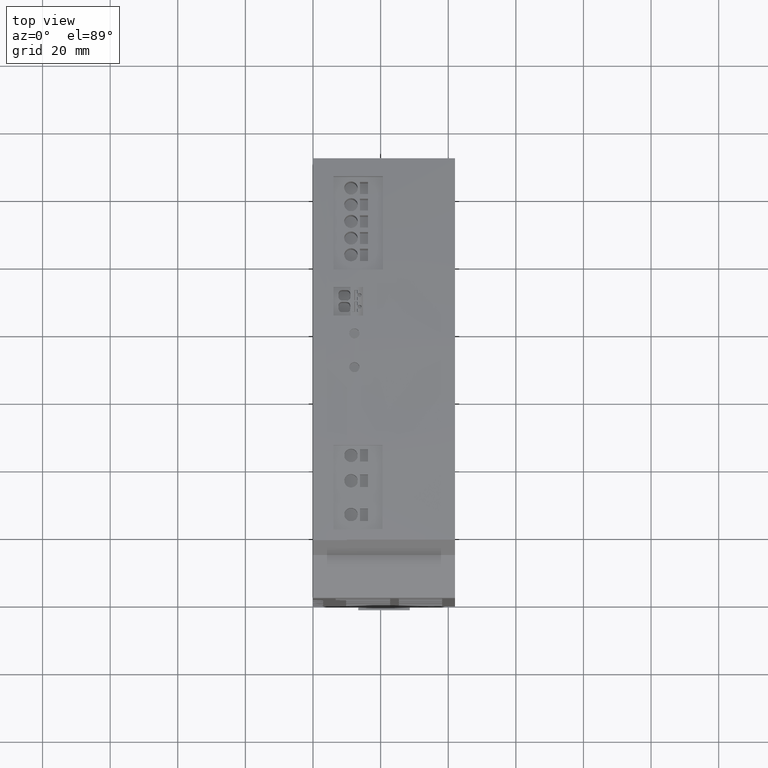
[diagram: clean part render]
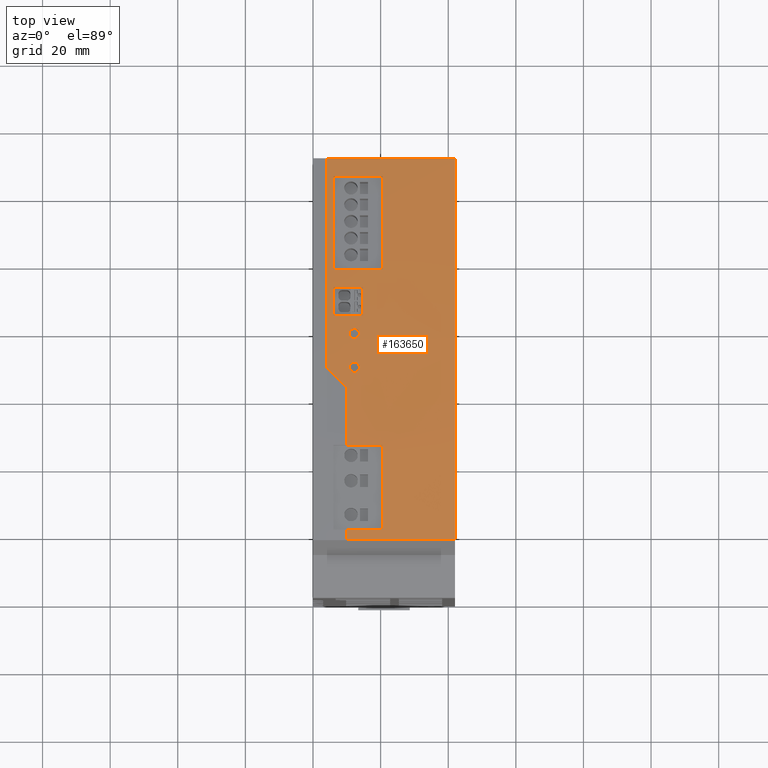
[diagram: same view with one face highlighted and labeled with its STEP entity id]
A machine part, top view. The second image highlights one B-rep face of the part: STEP entity #163650.
In plain terms, the highlighted cylindrical surface (partial cylindrical patch) has radius 660 mm, axis along (1, 0, 0).
Its self-contained STEP definition (entity closure, byte-faithful):
#156090=CARTESIAN_POINT('',(-500.,17.,-63.5));
#156100=DIRECTION('',(0.,0.,-1.));
#156110=DIRECTION('',(-1.,0.,0.));
#156120=AXIS2_PLACEMENT_3D('',#156090,#156100,#156110);
#156130=CYLINDRICAL_SURFACE('',#156120,660.);
#156140=CARTESIAN_POINT('',(155.140528377224,96.9430302003369,-63.5));
#156150=DIRECTION('',(0.,0.,-1.));
#156160=VECTOR('',#156150,1.);
#156170=LINE('',#156140,#156160);
#156180=CARTESIAN_POINT('',(155.140528377224,96.9430302003369,
-14.5646454457073));
#156190=VERTEX_POINT('',#156180);
#156200=CARTESIAN_POINT('',(155.140528377224,96.9430302003369,
-29.1646454457073));
#156210=VERTEX_POINT('',#156200);
#156220=EDGE_CURVE('',#156190,#156210,#156170,.T.);
#156230=ORIENTED_EDGE('',*,*,#156220,.F.);
#156240=CARTESIAN_POINT('',(-500.,17.,-29.1646454457073));
#156250=DIRECTION('',(0.,0.,-1.));
#156260=DIRECTION('',(-1.,0.,0.));
#156270=AXIS2_PLACEMENT_3D('',#156240,#156250,#156260);
#156280=CIRCLE('',#156270,660.);
#156290=CARTESIAN_POINT('',(151.160181954083,124.658801022145,
-29.1646454457073));
#156300=VERTEX_POINT('',#156290);
#156310=EDGE_CURVE('',#156300,#156210,#156280,.T.);
#156320=ORIENTED_EDGE('',*,*,#156310,.T.);
#156330=CARTESIAN_POINT('',(151.160181954083,124.658801022145,-63.5));
#156340=DIRECTION('',(0.,0.,-1.));
#156350=VECTOR('',#156340,1.);
#156360=LINE('',#156330,#156350);
#156370=CARTESIAN_POINT('',(151.160181954083,124.658801022145,
-14.5646454457073));
#156380=VERTEX_POINT('',#156370);
#156390=EDGE_CURVE('',#156380,#156300,#156360,.T.);
#156400=ORIENTED_EDGE('',*,*,#156390,.T.);
#156410=CARTESIAN_POINT('',(-500.,17.,-14.5646454457073));
#156420=DIRECTION('',(0.,0.,-1.));
#156430=DIRECTION('',(-1.,0.,0.));
#156440=AXIS2_PLACEMENT_3D('',#156410,#156420,#156430);
#156450=CIRCLE('',#156440,660.);
#156460=EDGE_CURVE('',#156380,#156190,#156450,.T.);
#156470=ORIENTED_EDGE('',*,*,#156460,.F.);
#156480=EDGE_LOOP('',(#156470,#156400,#156320,#156230));
#156490=FACE_BOUND('',#156480,.T.);
#156500=CARTESIAN_POINT('',(-500.,17.,-18.5));
#156510=DIRECTION('',(0.,0.,-1.));
#156520=DIRECTION('',(-1.,0.,0.));
#156530=AXIS2_PLACEMENT_3D('',#156500,#156510,#156520);
#156540=CIRCLE('',#156530,660.);
#156550=CARTESIAN_POINT('',(159.993093396575,20.0193821917187,-18.5));
#156560=VERTEX_POINT('',#156550);
#156570=CARTESIAN_POINT('',(160.,16.9999999999954,-18.5));
#156580=VERTEX_POINT('',#156570);
#156590=EDGE_CURVE('',#156560,#156580,#156540,.T.);
#156600=ORIENTED_EDGE('',*,*,#156590,.T.);
#156610=CARTESIAN_POINT('',(159.993093396575,20.0193821917187,-63.5));
#156620=DIRECTION('',(0.,0.,-1.));
#156630=VECTOR('',#156620,1.);
#156640=LINE('',#156610,#156630);
#156650=CARTESIAN_POINT('',(159.993093396575,20.0193821917187,
-29.1037309873865));
#156660=VERTEX_POINT('',#156650);
#156670=EDGE_CURVE('',#156560,#156660,#156640,.T.);
#156680=ORIENTED_EDGE('',*,*,#156670,.F.);
#156690=CARTESIAN_POINT('',(-500.,17.,-29.1037309873865));
#156700=DIRECTION('',(0.,0.,-1.));
#156710=DIRECTION('',(-1.,0.,0.));
#156720=AXIS2_PLACEMENT_3D('',#156690,#156700,#156710);
#156730=CIRCLE('',#156720,660.);
#156740=CARTESIAN_POINT('',(159.405243976737,45.0129294430252,
-29.1037309873865));
#156750=VERTEX_POINT('',#156740);
#156760=EDGE_CURVE('',#156750,#156660,#156730,.T.);
#156770=ORIENTED_EDGE('',*,*,#156760,.T.);
#156780=CARTESIAN_POINT('',(159.405243976737,45.0129294430252,-63.5));
#156790=DIRECTION('',(0.,0.,-1.));
#156800=VECTOR('',#156790,1.);
#156810=LINE('',#156780,#156800);
#156820=CARTESIAN_POINT('',(159.405243976737,45.0129294430252,-18.5));
#156830=VERTEX_POINT('',#156820);
#156840=EDGE_CURVE('',#156830,#156750,#156810,.T.);
#156850=ORIENTED_EDGE('',*,*,#156840,.T.);
#156860=CARTESIAN_POINT('',(158.464122029439,61.9999999999966,-18.5));
#156870=VERTEX_POINT('',#156860);
#156880=EDGE_CURVE('',#156870,#156830,#156540,.T.);
#156890=ORIENTED_EDGE('',*,*,#156880,.T.);
#156900=CARTESIAN_POINT('',(-500.,17.,-63.4999999999965));
#156910=DIRECTION('',(0.,-0.707106781186548,0.707106781186548));
#156920=DIRECTION('',(0.,0.707106781186548,0.707106781186548));
#156930=AXIS2_PLACEMENT_3D('',#156900,#156910,#156920);
#156940=ELLIPSE('',#156930,933.380951166243,660.);
#156950=CARTESIAN_POINT('',(158.026595207215,67.9999999999965,-12.5));
#156960=VERTEX_POINT('',#156950);
#156970=EDGE_CURVE('',#156870,#156960,#156940,.T.);
#156980=ORIENTED_EDGE('',*,*,#156970,.F.);
#156990=CARTESIAN_POINT('',(-500.,17.,-12.5));
#157000=DIRECTION('',(0.,0.,-1.));
#157010=DIRECTION('',(-1.,0.,0.));
#157020=AXIS2_PLACEMENT_3D('',#156990,#157000,#157010);
#157030=CIRCLE('',#157020,660.);
#157040=CARTESIAN_POINT('',(150.254565535683,130.,-12.5));
#157050=VERTEX_POINT('',#157040);
#157060=EDGE_CURVE('',#157050,#156960,#157030,.T.);
#157070=ORIENTED_EDGE('',*,*,#157060,.T.);
#157080=CARTESIAN_POINT('',(150.254565535683,130.,-63.5));
#157090=DIRECTION('',(0.,0.,-1.));
#157100=VECTOR('',#157090,1.);
#157110=LINE('',#157080,#157100);
#157120=CARTESIAN_POINT('',(150.254565535683,130.,-50.5));
#157130=VERTEX_POINT('',#157120);
#157140=EDGE_CURVE('',#157050,#157130,#157110,.T.);
#157150=ORIENTED_EDGE('',*,*,#157140,.F.);
#157160=CARTESIAN_POINT('',(-500.,17.,-50.5));
#157170=DIRECTION('',(0.,0.,-1.));
#157180=DIRECTION('',(-1.,0.,0.));
#157190=AXIS2_PLACEMENT_3D('',#157160,#157170,#157180);
#157200=CIRCLE('',#157190,660.);
#157210=CARTESIAN_POINT('',(160.,16.9999999999949,-50.5));
#157220=VERTEX_POINT('',#157210);
#157230=EDGE_CURVE('',#157130,#157220,#157200,.T.);
#157240=ORIENTED_EDGE('',*,*,#157230,.F.);
#157250=CARTESIAN_POINT('',(160.,16.9999999999951,-63.5));
#157260=DIRECTION('',(0.,0.,-1.));
#157270=VECTOR('',#157260,1.);
#157280=LINE('',#157250,#157270);
#157290=EDGE_CURVE('',#156580,#157220,#157280,.T.);
#157300=ORIENTED_EDGE('',*,*,#157290,.T.);
#157310=EDGE_LOOP('',(#157300,#157240,#157150,#157070,#156980,#156890,
#156850,#156770,#156680,#156600));
#157320=FACE_OUTER_BOUND('',#157310,.T.);
#157330=CARTESIAN_POINT('',(155.753335866467,91.7499999999999,-63.5));
#157340=DIRECTION('',(0.,0.,-1.));
#157350=VECTOR('',#157340,1.);
#157360=LINE('',#157330,#157350);
#157370=CARTESIAN_POINT('',(155.753335866467,91.7499999999999,-14.6));
#157380=VERTEX_POINT('',#157370);
#157390=CARTESIAN_POINT('',(155.753335866467,91.75,-23.3));
#157400=VERTEX_POINT('',#157390);
#157410=EDGE_CURVE('',#157380,#157400,#157360,.T.);
#157420=ORIENTED_EDGE('',*,*,#157410,.T.);
#157430=CARTESIAN_POINT('',(-500.,17.,-14.6));
#157440=DIRECTION('',(0.,0.,-1.));
#157450=DIRECTION('',(-1.,0.,0.));
#157460=AXIS2_PLACEMENT_3D('',#157430,#157440,#157450);
#157470=CIRCLE('',#157460,660.);
#157480=CARTESIAN_POINT('',(156.666534475452,83.25,-14.6));
#157490=VERTEX_POINT('',#157480);
#157500=EDGE_CURVE('',#157380,#157490,#157470,.T.);
#157510=ORIENTED_EDGE('',*,*,#157500,.F.);
#157520=CARTESIAN_POINT('',(156.666534475452,83.25,-63.5));
#157530=DIRECTION('',(0.,0.,-1.));
#157540=VECTOR('',#157530,1.);
#157550=LINE('',#157520,#157540);
#157560=CARTESIAN_POINT('',(156.666534475452,83.25,-23.3));
#157570=VERTEX_POINT('',#157560);
#157580=EDGE_CURVE('',#157490,#157570,#157550,.T.);
#157590=ORIENTED_EDGE('',*,*,#157580,.F.);
#157600=CARTESIAN_POINT('',(-500.,17.,-23.3));
#157610=DIRECTION('',(0.,0.,-1.));
#157620=DIRECTION('',(-1.,0.,0.));
#157630=AXIS2_PLACEMENT_3D('',#157600,#157610,#157620);
#157640=CIRCLE('',#157630,660.);
#157650=EDGE_CURVE('',#157400,#157570,#157640,.T.);
#157660=ORIENTED_EDGE('',*,*,#157650,.T.);
#157670=EDGE_LOOP('',(#157660,#157590,#157510,#157420));
#157680=FACE_BOUND('',#157670,.T.);
#157690=CARTESIAN_POINT('',(-500.,17.,-34.5));
#157700=DIRECTION('',(0.,0.,-1.));
#157710=DIRECTION('',(-1.,0.,0.));
#157720=AXIS2_PLACEMENT_3D('',#157690,#157700,#157710);
#157730=CYLINDRICAL_SURFACE('',#157720,660.);
#157740=CARTESIAN_POINT('',(156.280995800265,67.9587288529203,
-20.7299999999997));
#157750=DIRECTION('',(0.999450215941757,0.0331551783885286,
-4.49378157317781E-13));
#157760=DIRECTION('',(0.0331551783885286,-0.999450215941757,
-4.44917550544651E-28));
#157770=AXIS2_PLACEMENT_3D('',#157740,#157750,#157760);
#157780=CYLINDRICAL_SURFACE('',#157770,1.5);
#157790=CARTESIAN_POINT('',(158.139660695591,66.51956198809,
-20.7300000000005));
#157800=CARTESIAN_POINT('',(158.139660695591,66.51956198809,
-20.7576342950847));
#157810=CARTESIAN_POINT('',(158.139603305179,66.5203247528721,
-20.785266891291));
#157820=CARTESIAN_POINT('',(158.139488804966,66.5218464471745,
-20.8128339754947));
#157830=CARTESIAN_POINT('',(158.13937430453,66.5233681444461,
-20.8404011134891));
#157840=CARTESIAN_POINT('',(158.13920269826,66.5256487178511,
-20.8679021654169));
#157850=CARTESIAN_POINT('',(158.138974775363,66.5286773660838,
-20.8952752590936));
#157860=CARTESIAN_POINT('',(158.138746851583,66.5317060260706,
-20.9226484590045));
#157870=CARTESIAN_POINT('',(158.138462618893,66.5354826571132,
-20.9498931545944));
#157880=CARTESIAN_POINT('',(158.138123322704,66.539990202559,
-20.9769512674862));
#157890=CARTESIAN_POINT('',(158.137953674462,66.5422439772364,
-20.9904803356643));
#157900=CARTESIAN_POINT('',(158.137770267431,66.5446803834719,
-21.0039627897456));
#157910=CARTESIAN_POINT('',(158.137573293609,66.5472967900455,
-21.0173918418512));
#157920=CARTESIAN_POINT('',(158.137376363934,66.549912610219,
-21.0308178841814));
#157930=CARTESIAN_POINT('',(158.137165373463,66.5527149929051,
-21.0442247148284));
#157940=CARTESIAN_POINT('',(158.136940301218,66.5557041212313,
-21.0576065196102));
#157950=CARTESIAN_POINT('',(158.136490161076,66.5616823201345,
-21.0843698706402));
#157960=CARTESIAN_POINT('',(158.13598369498,66.568407498146,
-21.1110310793704));
#157970=CARTESIAN_POINT('',(158.135421276983,66.5758737751374,
-21.1375301048652));
#157980=CARTESIAN_POINT('',(158.134858861223,66.5833400224193,
-21.1640290249159));
#157990=CARTESIAN_POINT('',(158.134240501507,66.591547261556,
-21.1903652186574));
#158000=CARTESIAN_POINT('',(158.133567100676,66.6004824103536,
-21.2164774057906));
#158010=CARTESIAN_POINT('',(158.132893701223,66.609417540878,
-21.2425895395222));
#158020=CARTESIAN_POINT('',(158.132165272878,66.6190804166061,
-21.2684771159469));
#158030=CARTESIAN_POINT('',(158.131383248,66.6294507734512,
-21.2940796066597));
#158040=CARTESIAN_POINT('',(158.130601223285,66.6398211281377,
-21.3196820920434));
#158050=CARTESIAN_POINT('',(158.129765618158,66.6508987473892,
-21.3449989509735));
#158060=CARTESIAN_POINT('',(158.128878363619,66.6626566329728,
-21.3699722192907));
#158070=CARTESIAN_POINT('',(158.127991107645,66.6744145375816,
-21.394945528017));
#158080=CARTESIAN_POINT('',(158.127052221803,66.6868524464526,
-21.4195747317009));
#158090=CARTESIAN_POINT('',(158.126064073887,66.6999374910474,
-21.4438060692569));
#158100=CARTESIAN_POINT('',(158.125075922492,66.7130225817138,
-21.4680374921302));
#158110=CARTESIAN_POINT('',(158.124038531396,66.7267545087538,
-21.4918705767927));
#158120=CARTESIAN_POINT('',(158.122954611481,66.7410958208014,
-21.5152572293711));
#158130=CARTESIAN_POINT('',(158.121870101032,66.755444946201,
-21.5386566233323));
#158140=CARTESIAN_POINT('',(158.120741814439,66.7703670585854,
-21.5615553404849));
#158150=CARTESIAN_POINT('',(158.11956463635,66.7859281610879,
-21.5840666872622));
#158160=CARTESIAN_POINT('',(158.118386956469,66.8014958967725,
-21.6065876298802));
#158170=CARTESIAN_POINT('',(158.117159259131,66.8177174726273,
-21.6287354793603));
#158180=CARTESIAN_POINT('',(158.115883457528,66.834565724173,
-21.650457162363));
#158190=CARTESIAN_POINT('',(158.114607661448,66.851413902786,
-21.6721787513369));
#158200=CARTESIAN_POINT('',(158.113283783143,66.8688884620933,
-21.6934737151557));
#158210=CARTESIAN_POINT('',(158.111914279743,66.8869550388951,
-21.7142902492102));
#158220=CARTESIAN_POINT('',(158.110544779597,66.9050215727559,
-21.7351067337876));
#158230=CARTESIAN_POINT('',(158.109129680766,66.9236797715914,
-21.7554443422233));
#158240=CARTESIAN_POINT('',(158.107671934442,66.9428887933873,
-21.7752544209475));
#158250=CARTESIAN_POINT('',(158.106214188901,66.9620978048712,
-21.7950644890371));
#158260=CARTESIAN_POINT('',(158.104713825811,66.9818572407163,
-21.8143466078254));
#158270=CARTESIAN_POINT('',(158.103174215692,67.0021208273203,
-21.8330568258015));
#158280=CARTESIAN_POINT('',(158.101634603609,67.0223844397886,
-21.8517670676592));
#158290=CARTESIAN_POINT('',(158.100055777087,67.0431517704361,
-21.8699050285864));
#158300=CARTESIAN_POINT('',(158.098441426903,67.0643724766505,
-21.8874326899588));
#158310=CARTESIAN_POINT('',(158.095906845993,67.0976896573911,
-21.914951673352));
#158320=CARTESIAN_POINT('',(158.093284855503,67.1321222830074,
-21.9409623280305));
#158330=CARTESIAN_POINT('',(158.090590465906,67.167466950551,
-21.9653533859473));
#158340=CARTESIAN_POINT('',(158.087899628072,67.2027650265151,
-21.9897122914068));
#158350=CARTESIAN_POINT('',(158.085124051696,67.2391372721356,
-22.0125775435051));
#158360=CARTESIAN_POINT('',(158.082261608026,67.276604468333,
-22.0339253319306));
#158370=CARTESIAN_POINT('',(158.07940039287,67.3140555842296,
-22.0552639582386));
#158380=CARTESIAN_POINT('',(158.076457614449,67.3525320828576,
-22.0750392919364));
#158390=CARTESIAN_POINT('',(158.07344823415,67.3918319692369,
-22.0931236572466));
#158400=CARTESIAN_POINT('',(158.070438868963,67.431131658255,
-22.1112079317384));
#158410=CARTESIAN_POINT('',(158.067363267543,67.4712499276766,
-22.1275988640585));
#158420=CARTESIAN_POINT('',(158.064238348581,67.5119610261004,
-22.1422047293976));
#158430=CARTESIAN_POINT('',(158.061113413571,67.5526723335893,
-22.1568106697427));
#158440=CARTESIAN_POINT('',(158.057939550395,67.5939713794704,
-22.1696298768203));
#158450=CARTESIAN_POINT('',(158.054734446902,67.6356245346879,
-22.1806130287935));
#158460=CARTESIAN_POINT('',(158.051528371935,67.6772903150544,
-22.1915995097805));
#158470=CARTESIAN_POINT('',(158.048295545542,67.7192519664485,
-22.2007385899338));
#158480=CARTESIAN_POINT('',(158.045041163275,67.7614400940702,
-22.2080507817474));
#158490=CARTESIAN_POINT('',(158.041784130332,67.8036625836766,
-22.2153689292988));
#158500=CARTESIAN_POINT('',(158.038497127752,67.8462204051768,
-22.2208713055976));
#158510=CARTESIAN_POINT('',(158.035197237933,67.8888906936895,
-22.2245320600347));
#158520=CARTESIAN_POINT('',(158.031896423761,67.9315729348548,
-22.2281938399096));
#158530=CARTESIAN_POINT('',(158.028579860395,67.9744046789483,
-22.2300182476132));
#158540=CARTESIAN_POINT('',(158.025259192903,68.0172349712637,
-22.2299998623604));
#158550=CARTESIAN_POINT('',(158.021939205438,68.060056492523,
-22.2299814808726));
#158560=CARTESIAN_POINT('',(158.018612838474,68.1029059451743,
-22.2281215078585));
#158570=CARTESIAN_POINT('',(158.015290629731,68.1456478839651,
-22.2244154457018));
#158580=CARTESIAN_POINT('',(158.011969008664,68.1883822620121,
-22.220710039121));
#158590=CARTESIAN_POINT('',(158.008654507408,68.2309709654153,
-22.2151596801163));
#158600=CARTESIAN_POINT('',(158.005365224441,68.2731833988272,
-22.2078005635141));
#158610=CARTESIAN_POINT('',(158.002078860824,68.3153583672793,
-22.2004479783764));
#158620=CARTESIAN_POINT('',(157.998801481924,68.3573655376756,
-22.191255487349));
#158630=CARTESIAN_POINT('',(157.995546788592,68.3990311813602,
-22.1802230931695));
#158640=CARTESIAN_POINT('',(157.992292454677,68.4406922238787,
-22.1691919173051));
#158650=CARTESIAN_POINT('',(157.989062581691,68.481988980628,
-22.1563252402725));
#158660=CARTESIAN_POINT('',(157.98587573115,68.5226876076077,
-22.1416749486052));
#158670=CARTESIAN_POINT('',(157.982688893767,68.5633860665507,
-22.1270247174263));
#158680=CARTESIAN_POINT('',(157.979545478447,68.603481310915,
-22.110592573531));
#158690=CARTESIAN_POINT('',(157.976463486593,68.6427487424558,
-22.0924724686348));
#158700=CARTESIAN_POINT('',(157.973381476179,68.6820164104651,
-22.0743522546195));
#158710=CARTESIAN_POINT('',(157.97036126616,68.7204514955728,
-22.0545464749192));
#158720=CARTESIAN_POINT('',(157.967419039761,68.7578543040093,
-22.0331842158458));
#158730=CARTESIAN_POINT('',(157.96594793532,68.7765555968961,
-22.0225031498949));
#158740=CARTESIAN_POINT('',(157.964496324241,68.7949988777356,
-22.0114336793307));
#158750=CARTESIAN_POINT('',(157.96306599268,68.8131623191664,
-21.9999943856687));
#158760=CARTESIAN_POINT('',(157.961635619974,68.8313262830894,
-21.9885547629424));
#158770=CARTESIAN_POINT('',(157.960227884865,68.8491932067745,
-21.976758834764));
#158780=CARTESIAN_POINT('',(157.958834233849,68.8668724103822,
-21.9645323111748));
#158790=CARTESIAN_POINT('',(157.956048286132,68.9022136373891,
-21.9400911454266));
#158800=CARTESIAN_POINT('',(157.95333202316,68.9366344232897,
-21.9140329234106));
#158810=CARTESIAN_POINT('',(157.950701985694,68.9699312731188,
-21.8864716219498));
#158820=CARTESIAN_POINT('',(157.94902683539,68.9911390425285,
-21.8689169965419));
#158830=CARTESIAN_POINT('',(157.947386732894,69.0118900227974,
-21.8507541977938));
#158840=CARTESIAN_POINT('',(157.945785773001,69.0321341437,
-21.8320218226909));
#158850=CARTESIAN_POINT('',(157.944184814703,69.0523782444415,
-21.8132894662436));
#158860=CARTESIAN_POINT('',(157.942623033333,69.0721150553657,
-21.7939879166887));
#158870=CARTESIAN_POINT('',(157.941104198353,69.0912987575806,
-21.7741615625649));
#158880=CARTESIAN_POINT('',(157.939585362138,69.1104824754077,
-21.754335192306));
#158890=CARTESIAN_POINT('',(157.938109503889,69.1291126896053,
-21.733984438585));
#158900=CARTESIAN_POINT('',(157.936679958705,69.1471491542577,
-21.7131582135215));
#158910=CARTESIAN_POINT('',(157.935250409713,69.1651856669557,
-21.6923319329809));
#158920=CARTESIAN_POINT('',(157.933867201627,69.1826280827611,
-21.6710306272826));
#158930=CARTESIAN_POINT('',(157.932533150551,69.1994427374346,
-21.6493061407611));
#158940=CARTESIAN_POINT('',(157.931199093288,69.2162574700999,
-21.6275815534741));
#158950=CARTESIAN_POINT('',(157.929914216203,69.2324441533342,
-21.6054342419002));
#158960=CARTESIAN_POINT('',(157.928680757741,69.2479763854853,
-21.5829170554204));
#158970=CARTESIAN_POINT('',(157.927448351619,69.2634953661272,
-21.5604190797469));
#158980=CARTESIAN_POINT('',(157.926262116088,69.2784259952475,
-21.5374591595042));
#158990=CARTESIAN_POINT('',(157.9251233103,69.2927539638797,
-21.5140413451803));
#159000=CARTESIAN_POINT('',(157.923984664943,69.3070799140384,
-21.4906268298751));
#159010=CARTESIAN_POINT('',(157.922894186806,69.320793921993,
-21.4667682622592));
#159020=CARTESIAN_POINT('',(157.92185495395,69.3338587718639,
-21.4425144066146));
#159030=CARTESIAN_POINT('',(157.920815724443,69.3469235796421,
-21.418260629112));
#159040=CARTESIAN_POINT('',(157.919827764144,69.3593389315155,
-21.3936120410584));
#159050=CARTESIAN_POINT('',(157.918893768819,69.371072377926,
-21.3686228990557));
#159060=CARTESIAN_POINT('',(157.917959774741,69.3828058086631,
-21.3436337904334));
#159070=CARTESIAN_POINT('',(157.917079766524,69.3938570744564,
-21.3183046455791));
#159080=CARTESIAN_POINT('',(157.916255956057,69.4041997244845,
-21.2926937310803));
#159090=CARTESIAN_POINT('',(157.91543214519,69.4145423795502,
-21.2670828041071));
#159100=CARTESIAN_POINT('',(157.914664549251,69.4241762057914,
-21.2411906494762));
#159110=CARTESIAN_POINT('',(157.913954828248,69.4330815635944,
-21.2150778841612));
#159120=CARTESIAN_POINT('',(157.913245105588,69.4419869421858,
-21.1889650578894));
#159130=CARTESIAN_POINT('',(157.912593270795,69.4501636922004,
-21.1626321707469));
#159140=CARTESIAN_POINT('',(157.912000397488,69.4575993825057,
-21.136140352794));
#159150=CARTESIAN_POINT('',(157.911407521637,69.465035104725,
-21.109648421138));
#159160=CARTESIAN_POINT('',(157.910873615528,69.4717296652077,
-21.0829980984685));
#159170=CARTESIAN_POINT('',(157.910399166794,69.4776778086664,
-21.0562490072533));
#159180=CARTESIAN_POINT('',(157.909451527103,69.4895583268867,
-21.0028217374232));
#159190=CARTESIAN_POINT('',(157.908735496305,69.4985313489412,
-20.9486835467251));
#159200=CARTESIAN_POINT('',(157.90825726955,69.5045237722309,
-20.894134419779));
#159210=CARTESIAN_POINT('',(157.908018224126,69.5075191323865,
-20.8668676074259));
#159220=CARTESIAN_POINT('',(157.907838742574,69.5097678849715,
-20.8395151254275));
#159230=CARTESIAN_POINT('',(157.907719161252,69.5112661058491,
-20.8121387017622));
#159240=CARTESIAN_POINT('',(157.907599579743,69.5127643290668,
-20.7847622353381));
#159250=CARTESIAN_POINT('',(157.907539899505,69.5135120076799,
-20.7573623791611));
#159260=CARTESIAN_POINT('',(157.907539899505,69.5135120076799,
-20.7300000000004));
#159270=B_SPLINE_CURVE_WITH_KNOTS('',3,(#157790,#157800,#157810,#157820,
#157830,#157840,#157850,#157860,#157870,#157880,#157890,#157900,#157910,
#157920,#157930,#157940,#157950,#157960,#157970,#157980,#157990,#158000,
#158010,#158020,#158030,#158040,#158050,#158060,#158070,#158080,#158090,
#158100,#158110,#158120,#158130,#158140,#158150,#158160,#158170,#158180,
#158190,#158200,#158210,#158220,#158230,#158240,#158250,#158260,#158270,
#158280,#158290,#158300,#158310,#158320,#158330,#158340,#158350,#158360,
#158370,#158380,#158390,#158400,#158410,#158420,#158430,#158440,#158450,
#158460,#158470,#158480,#158490,#158500,#158510,#158520,#158530,#158540,
#158550,#158560,#158570,#158580,#158590,#158600,#158610,#158620,#158630,
#158640,#158650,#158660,#158670,#158680,#158690,#158700,#158710,#158720,
#158730,#158740,#158750,#158760,#158770,#158780,#158790,#158800,#158810,
#158820,#158830,#158840,#158850,#158860,#158870,#158880,#158890,#158900,
#158910,#158920,#158930,#158940,#158950,#158960,#158970,#158980,#158990,
#159000,#159010,#159020,#159030,#159040,#159050,#159060,#159070,#159080,
#159090,#159100,#159110,#159120,#159130,#159140,#159150,#159160,#159170,
#159180,#159190,#159200,#159210,#159220,#159230,#159240,#159250,#159260)
,.UNSPECIFIED.,.F.,.F.,(4,3,3,3,3,3,3,3,3,3,3,3,3,3,3,3,3,3,3,3,3,3,3,3,
3,3,3,3,3,3,3,3,3,3,3,3,3,3,3,3,3,3,3,3,3,3,3,3,3,4),(0.,
0.0828762085168866,0.165612108761249,0.248082658418469,0.289182958417056
,0.330273224269074,0.412726945055943,0.495452006927672,0.578324110639711
,0.661211636142159,0.74398215896352,0.826508904798958,0.908715132179615,
0.991107883118349,1.07379275531586,1.15664779042649,1.2395424727969,
1.32234428701187,1.45185159366318,1.58105212005748,1.7109367074549,
1.84107260994202,1.97095212066889,2.10012881739932,2.22905664060334,
2.35794066920271,2.4869004892524,2.61593575911294,2.74518310692806,
2.87510968174709,3.00524320944731,3.13507648839566,3.1997304585516,
3.26423534280723,3.3938160244897,3.47664045881313,3.55953753424669,
3.64237467324271,3.72502229307645,3.80736042790191,3.889599376524,
3.97217124059111,4.05496808692281,4.13786180281811,4.22071965321861,
4.30341071274241,4.38581243990455,4.55023124256532,4.63251579584742,
4.71469569168512),.UNSPECIFIED.);
#159280=SURFACE_CURVE('',#159270,(#157730,#157780),.CURVE_3D.);
#159290=CARTESIAN_POINT('',(158.139660695591,66.5195619880899,
-20.7300000000005));
#159300=VERTEX_POINT('',#159290);
#159310=CARTESIAN_POINT('',(157.907539899505,69.51351200768,
-20.7300000000004));
#159320=VERTEX_POINT('',#159310);
#159330=EDGE_CURVE('',#159300,#159320,#159280,.T.);
#159340=ORIENTED_EDGE('',*,*,#159330,.F.);
#159350=CARTESIAN_POINT('',(157.907539899505,69.5135120076799,
-20.7300000000004));
#159360=CARTESIAN_POINT('',(157.907539899505,69.5135120076799,
-20.7026381246687));
#159370=CARTESIAN_POINT('',(157.907599573052,69.5127644130583,
-20.6752045089575));
#159380=CARTESIAN_POINT('',(157.907719615809,69.5112604107504,
-20.6477572998888));
#159390=CARTESIAN_POINT('',(157.907839657971,69.5097564159071,
-20.6203102270445));
#159400=CARTESIAN_POINT('',(157.908020071401,69.5074959877386,
-20.5928500999783));
#159410=CARTESIAN_POINT('',(157.908261017385,69.5044768098855,
-20.5654386433586));
#159420=CARTESIAN_POINT('',(157.908501962659,69.5014576409389,
-20.5380272676004));
#159430=CARTESIAN_POINT('',(157.908803438093,69.4976797518214,
-20.5106651293785));
#159440=CARTESIAN_POINT('',(157.909165023687,69.4931479131839,
-20.4834155254201));
#159450=CARTESIAN_POINT('',(157.909526608892,69.4886160794101,
-20.4561659507064));
#159460=CARTESIAN_POINT('',(157.909948297489,69.4833303798257,
-20.4290294861806));
#159470=CARTESIAN_POINT('',(157.910429079381,69.4773027944955,
-20.4020690875327));
#159480=CARTESIAN_POINT('',(157.910909861633,69.4712752046363,
-20.3751086686278));
#159490=CARTESIAN_POINT('',(157.911449726252,69.4645058643616,
-20.3483248826426));
#159500=CARTESIAN_POINT('',(157.912047100547,69.4570136394379,
-20.321778522674));
#159510=CARTESIAN_POINT('',(157.912644476401,69.4495213949463,
-20.2952320933726));
#159520=CARTESIAN_POINT('',(157.91329934719,69.4413064485903,
-20.2689236309602));
#159530=CARTESIAN_POINT('',(157.914009641174,69.4323937835553,
-20.2429100331988));
#159540=CARTESIAN_POINT('',(157.91471993842,69.4234810775799,
-20.2168963159439));
#159550=CARTESIAN_POINT('',(157.915485640811,69.4138708770799,
-20.1911779602779));
#159560=CARTESIAN_POINT('',(157.916304278266,69.4035930526484,
-20.1658063296321));
#159570=CARTESIAN_POINT('',(157.917122204457,69.3933241580018,
-20.1404567428737));
#159580=CARTESIAN_POINT('',(157.917995806148,69.3823532485492,
-20.115362070694));
#159590=CARTESIAN_POINT('',(157.9189260404,69.3706669601112,
-20.0905143800338));
#159600=CARTESIAN_POINT('',(157.919856078724,69.3589831330642,
-20.0656719228473));
#159610=CARTESIAN_POINT('',(157.920841977586,69.346593619244,
-20.0410994522487));
#159620=CARTESIAN_POINT('',(157.921882002352,69.3335187282798,
-20.0168546902984));
#159630=CARTESIAN_POINT('',(157.922922023703,69.3204438802398,
-19.9926100079426));
#159640=CARTESIAN_POINT('',(157.924016152128,69.3066838887348,
-19.9686935442747));
#159650=CARTESIAN_POINT('',(157.925162074323,69.2922662491887,
-19.9451620847057));
#159660=CARTESIAN_POINT('',(157.926307994918,69.2778486297732,
-19.9216306579924));
#159670=CARTESIAN_POINT('',(157.927505686103,69.2627736505712,
-19.8984847354686));
#159680=CARTESIAN_POINT('',(157.928752303634,69.2470754414443,
-19.875778315289));
#159690=CARTESIAN_POINT('',(157.929998921691,69.2313772256825,
-19.8530718855124));
#159700=CARTESIAN_POINT('',(157.931294439302,69.2150561138636,
-19.8308054327258));
#159710=CARTESIAN_POINT('',(157.932635559099,69.1981519429335,
-19.8090285747028));
#159720=CARTESIAN_POINT('',(157.933976681928,69.181247733785,
-19.7872516674449));
#159730=CARTESIAN_POINT('',(157.935363377374,69.1637608348586,
-19.7659647898304));
#159740=CARTESIAN_POINT('',(157.936792002197,69.1457354906203,
-19.745211838498));
#159750=CARTESIAN_POINT('',(157.938220633026,69.1277100705963,
-19.7244587999118));
#159760=CARTESIAN_POINT('',(157.939691161862,69.1091465981373,
-19.7042400688255));
#159770=CARTESIAN_POINT('',(157.941199736784,69.0900920417774,
-19.6845927400756));
#159780=CARTESIAN_POINT('',(157.944211605956,69.0520496283687,
-19.6453668568505));
#159790=CARTESIAN_POINT('',(157.947396260555,69.0117829265655,
-19.6081369579694));
#159800=CARTESIAN_POINT('',(157.950745545817,68.9693797894878,
-19.5730721122739));
#159810=CARTESIAN_POINT('',(157.953373627838,68.9361073407426,
-19.5455577970236));
#159820=CARTESIAN_POINT('',(157.956099228705,68.9015680368971,
-19.5194232141517));
#159830=CARTESIAN_POINT('',(157.958907402723,68.865944215974,
-19.4948262883017));
#159840=CARTESIAN_POINT('',(157.961715569785,68.8303204832932,
-19.4702294233798));
#159850=CARTESIAN_POINT('',(157.964605960503,68.7936166320413,
-19.4471733404849));
#159860=CARTESIAN_POINT('',(157.967561596956,68.756042025596,
-19.4257823936305));
#159870=CARTESIAN_POINT('',(157.973478249057,68.6808244277446,
-19.3829615688669));
#159880=CARTESIAN_POINT('',(157.979631221942,68.6024363453465,
-19.3469760106482));
#159890=CARTESIAN_POINT('',(157.985944100021,68.5218144750685,
-19.3180110557808));
#159900=CARTESIAN_POINT('',(157.989106106109,68.481432443065,
-19.3035030354335));
#159910=CARTESIAN_POINT('',(157.992316886497,68.4403795781232,
-19.2907206317109));
#159920=CARTESIAN_POINT('',(157.995558671201,68.3988790634032,
-19.279736637006));
#159930=CARTESIAN_POINT('',(157.998800997274,68.3573716182091,
-19.2687508080036));
#159940=CARTESIAN_POINT('',(158.00207158367,68.3154516929059,
-19.2595705905009));
#159950=CARTESIAN_POINT('',(158.005359164616,68.2732611664699,
-19.2522129962477));
#159960=CARTESIAN_POINT('',(158.008648417495,68.2310491836028,
-19.2448516602134));
#159970=CARTESIAN_POINT('',(158.011959964442,68.188498464918,
-19.2393053946848));
#159980=CARTESIAN_POINT('',(158.015276240775,68.1458330050087,
-19.2356006173481));
#159990=CARTESIAN_POINT('',(158.018593417153,68.1031559656031,
-19.2318948345269));
#160000=CARTESIAN_POINT('',(158.021918256242,68.0603264759411,
-19.2300261486968));
#160010=CARTESIAN_POINT('',(158.025238935089,68.0174962578402,
-19.2300002726489));
#160020=CARTESIAN_POINT('',(158.028558992251,67.9746740582521,
-19.2299744014454));
#160030=CARTESIAN_POINT('',(158.031876905717,67.931825160824,
-19.2317899429969));
#160040=CARTESIAN_POINT('',(158.035182775108,67.88907770956,
-19.2354519074002));
#160050=CARTESIAN_POINT('',(158.038488022615,67.8463382997456,
-19.239113182932));
#160060=CARTESIAN_POINT('',(158.041778094559,67.8037407648152,
-19.2446197618283));
#160070=CARTESIAN_POINT('',(158.04503531453,67.7615159141174,
-19.2519360788723));
#160080=CARTESIAN_POINT('',(158.048289465123,67.7193308531796,
-19.2592455015283));
#160090=CARTESIAN_POINT('',(158.051525953521,67.6773217283943,
-19.268392806506));
#160100=CARTESIAN_POINT('',(158.05473295189,67.6356439636844,
-19.279381848287));
#160110=CARTESIAN_POINT('',(158.057939487209,67.5939722167079,
-19.2903693033916));
#160120=CARTESIAN_POINT('',(158.06111429601,67.5526608511922,
-19.3031928891288));
#160130=CARTESIAN_POINT('',(158.064239666602,67.511943855062,
-19.3178014311517));
#160140=CARTESIAN_POINT('',(158.067365023686,67.4712270349145,
-19.332409910035));
#160150=CARTESIAN_POINT('',(158.07044055306,67.4311096772918,
-19.3488016526399));
#160160=CARTESIAN_POINT('',(158.073449393487,67.391816829297,
-19.3668833097013));
#160170=CARTESIAN_POINT('',(158.07645825148,67.352523751918,
-19.3849650723199));
#160180=CARTESIAN_POINT('',(158.079400056641,67.3140599691897,
-19.4047343594931));
#160190=CARTESIAN_POINT('',(158.082259973682,67.2766258606468,
-19.4260624795454));
#160200=CARTESIAN_POINT('',(158.083689923453,67.2579089208943,
-19.4367264743242));
#160210=CARTESIAN_POINT('',(158.085099407056,67.2394493486142,
-19.4477794571798));
#160220=CARTESIAN_POINT('',(158.086486817999,67.2212690753965,
-19.459202868239));
#160230=CARTESIAN_POINT('',(158.08787442695,67.2030862075365,
-19.4706279096184));
#160240=CARTESIAN_POINT('',(158.089238069092,67.1852075062585,
-19.4824050488453));
#160250=CARTESIAN_POINT('',(158.09058671948,67.1675160956851,
-19.4946127008567));
#160260=CARTESIAN_POINT('',(158.093282793496,67.1321493669922,
-19.5190169005597));
#160270=CARTESIAN_POINT('',(158.095906043615,67.09770020481,
-19.5450396062631));
#160280=CARTESIAN_POINT('',(158.098441440279,67.0643723008191,
-19.5725674552736));
#160290=CARTESIAN_POINT('',(158.111431834411,66.8936129815973,
-19.713609530945));
#160300=CARTESIAN_POINT('',(158.121788283338,66.7566142888245,
-19.8904636982893));
#160310=CARTESIAN_POINT('',(158.128878537182,66.6626543329185,
-20.0900326659542));
#160320=CARTESIAN_POINT('',(158.129765916256,66.6508947964442,
-20.1150096737845));
#160330=CARTESIAN_POINT('',(158.130601541347,66.6398169110874,
-20.1403278620819));
#160340=CARTESIAN_POINT('',(158.13138351211,66.6294472711061,
-20.1659290400599));
#160350=CARTESIAN_POINT('',(158.132165483215,66.619077626604,
-20.1915302291992));
#160360=CARTESIAN_POINT('',(158.132893784059,66.6094164415429,
-20.2174138666719));
#160370=CARTESIAN_POINT('',(158.133567017478,66.6004835142902,
-20.2435193680644));
#160380=CARTESIAN_POINT('',(158.134240252431,66.5915505666686,
-20.2696249289827));
#160390=CARTESIAN_POINT('',(158.134858407971,66.5833460381642,
-20.2959518042664));
#160400=CARTESIAN_POINT('',(158.135420617993,66.5758825234396,
-20.3224388472723));
#160410=CARTESIAN_POINT('',(158.135982830394,66.5684189771284,
-20.348926002375));
#160420=CARTESIAN_POINT('',(158.136489089613,66.5616965479522,
-20.3755727852029));
#160430=CARTESIAN_POINT('',(158.136939056788,66.5557206481993,
-20.4023195008168));
#160440=CARTESIAN_POINT('',(158.137837410684,66.5437898382797,
-20.4557189876147));
#160450=CARTESIAN_POINT('',(158.138518228859,66.5347439732323,
-20.5099045200949));
#160460=CARTESIAN_POINT('',(158.138974524384,66.5286807011028,
-20.5646946015993));
#160470=CARTESIAN_POINT('',(158.139202574802,66.5256503585684,
-20.5920779535084));
#160480=CARTESIAN_POINT('',(158.139374244669,66.523368939975,
-20.6195868105384));
#160490=CARTESIAN_POINT('',(158.13948877591,66.521846833326,
-20.6471590292655));
#160500=CARTESIAN_POINT('',(158.139603306955,66.520324729291,
-20.6747312006392));
#160510=CARTESIAN_POINT('',(158.139660695591,66.51956198809,
-20.7023661578307));
#160520=CARTESIAN_POINT('',(158.139660695591,66.51956198809,
-20.7300000000005));
#160530=B_SPLINE_CURVE_WITH_KNOTS('',3,(#159350,#159360,#159370,#159380,
#159390,#159400,#159410,#159420,#159430,#159440,#159450,#159460,#159470,
#159480,#159490,#159500,#159510,#159520,#159530,#159540,#159550,#159560,
#159570,#159580,#159590,#159600,#159610,#159620,#159630,#159640,#159650,
#159660,#159670,#159680,#159690,#159700,#159710,#159720,#159730,#159740,
#159750,#159760,#159770,#159780,#159790,#159800,#159810,#159820,#159830,
#159840,#159850,#159860,#159870,#159880,#159890,#159900,#159910,#159920,
#159930,#159940,#159950,#159960,#159970,#159980,#159990,#160000,#160010,
#160020,#160030,#160040,#160050,#160060,#160070,#160080,#160090,#160100,
#160110,#160120,#160130,#160140,#160150,#160160,#160170,#160180,#160190,
#160200,#160210,#160220,#160230,#160240,#160250,#160260,#160270,#160280,
#160290,#160300,#160310,#160320,#160330,#160340,#160350,#160360,#160370,
#160380,#160390,#160400,#160410,#160420,#160430,#160440,#160450,#160460,
#160470,#160480,#160490,#160500,#160510,#160520),.UNSPECIFIED.,.F.,.F.,(
4,3,3,3,3,3,3,3,3,3,3,3,3,3,3,3,3,3,3,3,3,3,3,3,3,3,3,3,3,3,3,3,3,3,3,3,
3,3,3,4),(0.,0.0822840509986187,0.164893977458989,0.247711238088454,
0.330606718213347,0.413447467577456,0.496103131314489,0.578452593444741,
0.660681382951753,0.743241668112937,0.826031137396537,0.908922360952367,
0.991782856383305,1.07448151160332,1.1568951242062,1.32159675190706,
1.45159096542035,1.5817102732074,1.84051640291533,1.96967039239571,
2.09868076103249,2.22760883117056,2.35649295339819,2.4854507945306,
2.61448970385632,2.74372342409186,2.87364137367213,3.00377569217799,
3.13361889814791,3.19828087534691,3.26278427170197,3.39235163476004,
4.05348939849905,4.13638085443716,4.21924021449962,4.30193642362653,
4.38434659459976,4.54905319901903,4.63181241761343,4.71469563208136),
.UNSPECIFIED.);
#160540=SURFACE_CURVE('',#160530,(#157730,#157780),.CURVE_3D.);
#160550=EDGE_CURVE('',#159320,#159300,#160540,.T.);
#160560=ORIENTED_EDGE('',*,*,#160550,.F.);
#160570=EDGE_LOOP('',(#160560,#159340));
#160580=FACE_BOUND('',#160570,.T.);
#160590=CARTESIAN_POINT('',(155.948689465334,77.9759766660442,
-20.7299999999997));
#160600=DIRECTION('',(0.999450215941757,0.0331551783885286,
-4.49378157317781E-13));
#160610=DIRECTION('',(0.0331551783885286,-0.999450215941757,
-4.44917550544651E-28));
#160620=AXIS2_PLACEMENT_3D('',#160590,#160600,#160610);
#160630=CYLINDRICAL_SURFACE('',#160620,1.5);
#160640=CARTESIAN_POINT('',(157.310679899905,76.5203334124106,
-20.7300000000003));
#160650=CARTESIAN_POINT('',(157.310679899905,76.5203334124106,
-20.7576195645895));
#160660=CARTESIAN_POINT('',(157.310610940345,76.5210949794962,
-20.7852373900685));
#160670=CARTESIAN_POINT('',(157.310473361205,76.5226142711219,
-20.8127896721315));
#160680=CARTESIAN_POINT('',(157.310335781796,76.5241335657235,
-20.840342008163));
#160690=CARTESIAN_POINT('',(157.3101295876,76.5264105313902,
-20.8678282257601));
#160700=CARTESIAN_POINT('',(157.309855733948,76.5294343582779,
-20.8951864674603));
#160710=CARTESIAN_POINT('',(157.30958187923,76.5324581969368,
-20.9225448156624));
#160720=CARTESIAN_POINT('',(157.309240374374,76.536228792918,
-20.9497746410693));
#160730=CARTESIAN_POINT('',(157.308832726651,76.5407290812578,
-20.976817889081));
#160740=CARTESIAN_POINT('',(157.308628902612,76.5429792273903,
-20.9903395248806));
#160750=CARTESIAN_POINT('',(157.308408551425,76.5454116995922,
-21.0038145480311));
#160760=CARTESIAN_POINT('',(157.308171905449,76.5480238657716,
-21.0172361746927));
#160770=CARTESIAN_POINT('',(157.307935308173,76.5506354943892,
-21.0306550392969));
#160780=CARTESIAN_POINT('',(157.307681818905,76.5534334093023,
-21.0440548397164));
#160790=CARTESIAN_POINT('',(157.30741141913,76.5564177354744,
-21.0574295030013));
#160800=CARTESIAN_POINT('',(157.306870623929,76.5623863398171,
-21.0841786144462));
#160810=CARTESIAN_POINT('',(157.306262181009,76.5691006617624,
-21.1108255131951));
#160820=CARTESIAN_POINT('',(157.305586558018,76.5765547813922,
-21.1373102208435));
#160830=CARTESIAN_POINT('',(157.304910937714,76.5840088713672,
-21.1637948231271));
#160840=CARTESIAN_POINT('',(157.304168146921,76.5922026519501,
-21.1901166910349));
#160850=CARTESIAN_POINT('',(157.303359291674,76.601123008555,
-21.2162146099765));
#160860=CARTESIAN_POINT('',(157.302550438079,76.6100433469389,
-21.2423124756092));
#160870=CARTESIAN_POINT('',(157.30167553476,76.6196900969888,
-21.268185841447));
#160880=CARTESIAN_POINT('',(157.300736326508,76.6300429702252,
-21.2937742484964));
#160890=CARTESIAN_POINT('',(157.299797118447,76.6403958413443,
-21.3193626503128));
#160900=CARTESIAN_POINT('',(157.298793624872,76.651454619278,
-21.3446655525706));
#160910=CARTESIAN_POINT('',(157.297728191571,76.6631922897164,
-21.3696250642827));
#160920=CARTESIAN_POINT('',(157.296662756541,76.6749299792006,
-21.3945846164945));
#160930=CARTESIAN_POINT('',(157.295535405316,76.6873462994036,
-21.4192002638114));
#160940=CARTESIAN_POINT('',(157.294349009635,76.7004083738142,
-21.4434183216432));
#160950=CARTESIAN_POINT('',(157.293162609771,76.7134704942825,
-21.4676364648693));
#160960=CARTESIAN_POINT('',(157.29191719237,76.7271780700122,
-21.4914565466989));
#160970=CARTESIAN_POINT('',(157.290616041807,76.7414936487397,
-21.5148305522352));
#160980=CARTESIAN_POINT('',(157.289314178877,76.7558170650904,
-21.5382173547844));
#160990=CARTESIAN_POINT('',(157.287959905156,76.7707119497836,
-21.5611035678211));
#161000=CARTESIAN_POINT('',(157.286547049629,76.7862448024337,
-21.5836034810399));
#161010=CARTESIAN_POINT('',(157.285133601773,76.80178416711,
-21.6061128271703));
#161020=CARTESIAN_POINT('',(157.283660267099,76.8179758185865,
-21.6282493994087));
#161030=CARTESIAN_POINT('',(157.282129371961,76.8347926231975,
-21.6499603119499));
#161040=CARTESIAN_POINT('',(157.280598483434,76.8516093551769,
-21.6716711307219));
#161050=CARTESIAN_POINT('',(157.279010060864,76.8690509467841,
-21.6929558327753));
#161060=CARTESIAN_POINT('',(157.27736708192,76.8870830969386,
-21.7137627958434));
#161070=CARTESIAN_POINT('',(157.275724106873,76.9051152043122,
-21.7345697095473));
#161080=CARTESIAN_POINT('',(157.274026607093,76.9237375195552,
-21.7548984395599));
#161090=CARTESIAN_POINT('',(157.272278150981,76.9429092905833,
-21.7747005030908));
#161100=CARTESIAN_POINT('',(157.270529695811,76.9620810512931,
-21.7945025559642));
#161110=CARTESIAN_POINT('',(157.268730320158,76.9818018713584,
-21.8137775243854));
#161120=CARTESIAN_POINT('',(157.266884092884,77.0020255894055,
-21.8324816105283));
#161130=CARTESIAN_POINT('',(157.265037863268,77.0222493331067,
-21.8511857203977));
#161140=CARTESIAN_POINT('',(157.26314482102,77.0429755446555,
-21.8693185693482));
#161150=CARTESIAN_POINT('',(157.261209416236,77.0641540080834,
-21.8868422707925));
#161160=CARTESIAN_POINT('',(157.258164348888,77.0974751241609,
-21.9144131704433));
#161170=CARTESIAN_POINT('',(157.255014605131,77.1319136284984,
-21.9404722032586));
#161180=CARTESIAN_POINT('',(157.251778379588,77.1672653264959,
-21.9649078347572));
#161190=CARTESIAN_POINT('',(157.248546413724,77.2025704928543,
-21.9893113028789));
#161200=CARTESIAN_POINT('',(157.245213231725,77.2389500262022,
-22.0122169495854));
#161210=CARTESIAN_POINT('',(157.241776249675,77.2764261728561,
-22.0336023133717));
#161220=CARTESIAN_POINT('',(157.238340755903,77.3138860916394,
-22.0549784168966));
#161230=CARTESIAN_POINT('',(157.234807888483,77.3523724318089,
-22.0747879245646));
#161240=CARTESIAN_POINT('',(157.231195729227,77.3916828738124,
-22.092903120602));
#161250=CARTESIAN_POINT('',(157.227583588126,77.4309931182263,
-22.1110182255853));
#161260=CARTESIAN_POINT('',(157.223892594831,77.4711226528662,
-22.1274366397846));
#161270=CARTESIAN_POINT('',(157.220143154122,77.5118453897661,
-22.1420666571774));
#161280=CARTESIAN_POINT('',(157.216393694155,77.5525683358419,
-22.1566967497186));
#161290=CARTESIAN_POINT('',(157.212586254409,77.5938793902231,
-22.169536775856));
#161300=CARTESIAN_POINT('',(157.208742130246,77.6355445887947,
-22.1805375041443));
#161310=CARTESIAN_POINT('',(157.204896831615,77.6772225170406,
-22.1915415934074));
#161320=CARTESIAN_POINT('',(157.201020272499,77.7191958847058,
-22.2006949322454));
#161330=CARTESIAN_POINT('',(157.197118616836,77.7613963115456,
-22.2080184677662));
#161340=CARTESIAN_POINT('',(157.193213788201,77.8036310573404,
-22.2153479590582));
#161350=CARTESIAN_POINT('',(157.189273841554,77.8462010732168,
-22.220858638844));
#161360=CARTESIAN_POINT('',(157.185319268533,77.8888835331748,
-22.2245247536435));
#161370=CARTESIAN_POINT('',(157.181363583595,77.931577994263,
-22.2281918992533));
#161380=CARTESIAN_POINT('',(157.177389849904,77.9744218616383,
-22.2300187247482));
#161390=CARTESIAN_POINT('',(157.173412017708,78.017264253684,
-22.2299998552427));
#161400=CARTESIAN_POINT('',(157.169435002687,78.060097844515,
-22.2299809896135));
#161410=CARTESIAN_POINT('',(157.165451165703,78.10295932193,
-22.2281176309987));
#161420=CARTESIAN_POINT('',(157.161473123019,78.1457132003823,
-22.2244052521895));
#161430=CARTESIAN_POINT('',(157.157495784185,78.1884595142351,
-22.220693530225));
#161440=CARTESIAN_POINT('',(157.15352778671,78.2310600582362,
-22.2151339266461));
#161450=CARTESIAN_POINT('',(157.149590770281,78.27328414939,
-22.2077626114171));
#161460=CARTESIAN_POINT('',(157.145657261492,78.3154706214673,
-22.200397863578));
#161470=CARTESIAN_POINT('',(157.141735326286,78.3574889029731,
-22.1911902805645));
#161480=CARTESIAN_POINT('',(157.137841284597,78.3991657257653,
-22.1801395964638));
#161490=CARTESIAN_POINT('',(157.133947678191,78.4408378898404,
-22.1690901476303));
#161500=CARTESIAN_POINT('',(157.130084113225,78.4821455798589,
-22.1562020570117));
#161510=CARTESIAN_POINT('',(157.126272760974,78.5228546742546,
-22.1415271425896));
#161520=CARTESIAN_POINT('',(157.122461424458,78.5635636006017,
-22.1268522887462));
#161530=CARTESIAN_POINT('',(157.118702778253,78.6036688457693,
-22.1103923156953));
#161540=CARTESIAN_POINT('',(157.115018292692,78.6429455347112,
-22.0922411596445));
#161550=CARTESIAN_POINT('',(157.111333784934,78.6822224602587,
-22.0740898942498));
#161560=CARTESIAN_POINT('',(157.107723888001,78.720666057844,
-22.0542498454333));
#161570=CARTESIAN_POINT('',(157.104207872707,78.7580763623852,
-22.0328501258801));
#161580=CARTESIAN_POINT('',(157.102449875526,78.7767814032987,
-22.0221503298029));
#161590=CARTESIAN_POINT('',(157.10071534535,78.795228178046,
-22.0110613322586));
#161600=CARTESIAN_POINT('',(157.099006406211,78.8133948264427,
-21.9996017202953));
#161610=CARTESIAN_POINT('',(157.097297426811,78.831561902841,
-21.9881418383465));
#161620=CARTESIAN_POINT('',(157.095615626681,78.8494320072682,
-21.97632465884));
#161630=CARTESIAN_POINT('',(157.093950808942,78.8671141261284,
-21.9640759001552));
#161640=CARTESIAN_POINT('',(157.090622795144,78.9024611398984,
-21.9395903141618));
#161650=CARTESIAN_POINT('',(157.08737866724,78.9368865454099,
-21.9134839928124));
#161660=CARTESIAN_POINT('',(157.084238157155,78.9701861013142,
-21.8858711686493));
#161670=CARTESIAN_POINT('',(157.082242089019,78.9913508741328,
-21.8683208099607));
#161680=CARTESIAN_POINT('',(157.080287959782,79.0120600086123,
-21.8501634665944));
#161690=CARTESIAN_POINT('',(157.078380618488,79.0322635713508,
-21.8314375928169));
#161700=CARTESIAN_POINT('',(157.076473279079,79.0524671141225,
-21.8127117375459));
#161710=CARTESIAN_POINT('',(157.074612768283,79.0721646573417,
-21.7934177334444));
#161720=CARTESIAN_POINT('',(157.072803546255,79.0913105020746,
-21.7735998028521));
#161730=CARTESIAN_POINT('',(157.070994322753,79.1104563623993,
-21.7537818561206));
#161740=CARTESIAN_POINT('',(157.069236425427,79.1290501316445,
-21.7334404021972));
#161750=CARTESIAN_POINT('',(157.067533797043,79.1470516587181,
-21.7126241687719));
#161760=CARTESIAN_POINT('',(157.065831164134,79.16505323364,
-21.6918078800165));
#161770=CARTESIAN_POINT('',(157.064183833147,79.1824622210025,
-21.6705172560932));
#161780=CARTESIAN_POINT('',(157.062595129929,79.1992450205231,
-21.6488039450004));
#161790=CARTESIAN_POINT('',(157.061006419361,79.2160278976879,
-21.6270905334527));
#161800=CARTESIAN_POINT('',(157.059476364,79.2321843002786,
-21.6049548894527));
#161810=CARTESIAN_POINT('',(157.058007604016,79.247687856181,
-21.5824496613868));
#161820=CARTESIAN_POINT('',(157.056540098845,79.2631781668608,
-21.5599636603136));
#161830=CARTESIAN_POINT('',(157.055127668414,79.2780813049868,
-21.5370165160873));
#161840=CARTESIAN_POINT('',(157.053771757027,79.2923833214362,
-21.5136116218398));
#161850=CARTESIAN_POINT('',(157.052416039553,79.3066832925062,
-21.4902100748046));
#161860=CARTESIAN_POINT('',(157.051117732534,79.3203727367221,
-21.4663648228607));
#161870=CARTESIAN_POINT('',(157.049880484766,79.3334144336293,
-21.4421245495505));
#161880=CARTESIAN_POINT('',(157.048643240989,79.346456088464,
-21.4178843544394));
#161890=CARTESIAN_POINT('',(157.047467084917,79.3588496985593,
-21.393249615298));
#161900=CARTESIAN_POINT('',(157.046355210702,79.3705628027553,
-21.3682745105112));
#161910=CARTESIAN_POINT('',(157.045243337975,79.3822758912627,
-21.3432994391763));
#161920=CARTESIAN_POINT('',(157.044195771944,79.3933082146524,
-21.3179845198829));
#161930=CARTESIAN_POINT('',(157.043215131739,79.403633302457,
-21.292387944316));
#161940=CARTESIAN_POINT('',(157.042234491059,79.4139583952641,
-21.2667913563473));
#161950=CARTESIAN_POINT('',(157.041320796634,79.4235760395832,
-21.2409136541912));
#161960=CARTESIAN_POINT('',(157.040476012128,79.432466567933,
-21.2148153834674));
#161970=CARTESIAN_POINT('',(157.039631225651,79.4413571170277,
-21.1887170518465));
#161980=CARTESIAN_POINT('',(157.038855364471,79.449520390097,
-21.1623987016847));
#161990=CARTESIAN_POINT('',(157.038149696153,79.4569439202367,
-21.1359213948147));
#162000=CARTESIAN_POINT('',(157.037444024806,79.4643674822456,
-21.1094439742775));
#162010=CARTESIAN_POINT('',(157.036808556138,79.4710511993396,
-21.0828081371126));
#162020=CARTESIAN_POINT('',(157.036243862465,79.4769897730672,
-21.0560734396497));
#162030=CARTESIAN_POINT('',(157.035115972374,79.4888511747009,
-21.0026749303944));
#162040=CARTESIAN_POINT('',(157.03426379803,79.4978098136644,
-20.9485665921629));
#162050=CARTESIAN_POINT('',(157.033694639178,79.503792755286,
-20.8940466573939));
#162060=CARTESIAN_POINT('',(157.033410141376,79.5067833680808,
-20.8667945087347));
#162070=CARTESIAN_POINT('',(157.03319653496,79.5090285743669,
-20.8394566741345));
#162080=CARTESIAN_POINT('',(157.033054217875,79.5105244349327,
-20.8120948781736));
#162090=CARTESIAN_POINT('',(157.032911900569,79.5120202978384,
-20.7847330394127));
#162100=CARTESIAN_POINT('',(157.032840873837,79.5127668021109,
-20.7573477924036));
#162110=CARTESIAN_POINT('',(157.032840873837,79.5127668021109,
-20.7300000000002));
#162120=B_SPLINE_CURVE_WITH_KNOTS('',3,(#160640,#160650,#160660,#160670,
#160680,#160690,#160700,#160710,#160720,#160730,#160740,#160750,#160760,
#160770,#160780,#160790,#160800,#160810,#160820,#160830,#160840,#160850,
#160860,#160870,#160880,#160890,#160900,#160910,#160920,#160930,#160940,
#160950,#160960,#160970,#160980,#160990,#161000,#161010,#161020,#161030,
#161040,#161050,#161060,#161070,#161080,#161090,#161100,#161110,#161120,
#161130,#161140,#161150,#161160,#161170,#161180,#161190,#161200,#161210,
#161220,#161230,#161240,#161250,#161260,#161270,#161280,#161290,#161300,
#161310,#161320,#161330,#161340,#161350,#161360,#161370,#161380,#161390,
#161400,#161410,#161420,#161430,#161440,#161450,#161460,#161470,#161480,
#161490,#161500,#161510,#161520,#161530,#161540,#161550,#161560,#161570,
#161580,#161590,#161600,#161610,#161620,#161630,#161640,#161650,#161660,
#161670,#161680,#161690,#161700,#161710,#161720,#161730,#161740,#161750,
#161760,#161770,#161780,#161790,#161800,#161810,#161820,#161830,#161840,
#161850,#161860,#161870,#161880,#161890,#161900,#161910,#161920,#161930,
#161940,#161950,#161960,#161970,#161980,#161990,#162000,#162010,#162020,
#162030,#162040,#162050,#162060,#162070,#162080,#162090,#162100,#162110)
,.UNSPECIFIED.,.F.,.F.,(4,3,3,3,3,3,3,3,3,3,3,3,3,3,3,3,3,3,3,3,3,3,3,3,
3,3,3,3,3,3,3,3,3,3,3,3,3,3,3,3,3,3,3,3,3,3,3,3,3,4),(0.,
0.0828319009570406,0.165523279135612,0.247949130671172,0.289027034023395
,0.330095814022111,0.412506205119988,0.495187496984973,0.578015561938186
,0.660858907163935,0.74358518707204,0.826067652882869,0.908229849315607,
0.990578733100509,1.07321925719797,1.15602991363049,1.23888056823428,
1.32163899369747,1.45135241712641,1.5807564661378,1.71084565202729,
1.8411870250033,1.97127169664077,2.10065204502402,2.22978337319015,
2.35887085811427,2.48803432841255,2.61727353731828,2.74672461260119,
2.87685631392425,3.00719514328609,3.13723283524087,3.20198847169604,
3.26659534987874,3.39638216625344,3.47916303104532,3.562015883529,
3.64480846904621,3.72741162328043,3.80970586825052,3.8919007195899,
3.9744283820748,4.05718100321189,4.14003048812015,4.22284418330169,
4.30549130416808,4.38784950630212,4.5521804808388,4.63442110454929,
4.71655717859393),.UNSPECIFIED.);
#162130=SURFACE_CURVE('',#162120,(#157730,#160630),.CURVE_3D.);
#162140=CARTESIAN_POINT('',(157.310679899905,76.5203334124105,
-20.7300000000003));
#162150=VERTEX_POINT('',#162140);
#162160=CARTESIAN_POINT('',(157.032840873837,79.512766802111,
-20.7300000000002));
#162170=VERTEX_POINT('',#162160);
#162180=EDGE_CURVE('',#162150,#162170,#162130,.T.);
#162190=ORIENTED_EDGE('',*,*,#162180,.F.);
#162200=CARTESIAN_POINT('',(157.032840873837,79.5127668021109,
-20.7300000000002));
#162210=CARTESIAN_POINT('',(157.032840873837,79.5127668021109,
-20.7026527078533));
#162220=CARTESIAN_POINT('',(157.032911892584,79.5120203819054,
-20.6752337283176));
#162230=CARTESIAN_POINT('',(157.03305475883,79.510518749089,
-20.647801184214));
#162240=CARTESIAN_POINT('',(157.033197624366,79.5090171237408,
-20.6203687765423));
#162250=CARTESIAN_POINT('',(157.033412339857,79.5067602600917,
-20.5929233443849));
#162260=CARTESIAN_POINT('',(157.033699100067,79.5037458628117,
-20.5655265938528));
#162270=CARTESIAN_POINT('',(157.033985859429,79.5007314744405,
-20.5381299242887));
#162280=CARTESIAN_POINT('',(157.034344660663,79.4969595819656,
-20.5107825044594));
#162290=CARTESIAN_POINT('',(157.034775008526,79.4924349781276,
-20.4835476143228));
#162300=CARTESIAN_POINT('',(157.035205355926,79.487910379151,
-20.4563127534474));
#162310=CARTESIAN_POINT('',(157.035707241898,79.4826331525893,
-20.4291909991952));
#162320=CARTESIAN_POINT('',(157.036279470506,79.4766153016855,
-20.4022452887827));
#162330=CARTESIAN_POINT('',(157.036851699546,79.4705974462439,
-20.3752995580519));
#162340=CARTESIAN_POINT('',(157.037494258211,79.4638391018924,
-20.3485304391234));
#162350=CARTESIAN_POINT('',(157.038205282392,79.4563591581626,
-20.3219987019379));
#162360=CARTESIAN_POINT('',(157.038916308435,79.4488791948498,
-20.2954668952903));
#162370=CARTESIAN_POINT('',(157.039695782441,79.4406778150496,
-20.2691730120395));
#162380=CARTESIAN_POINT('',(157.040541247533,79.4317800254717,
-20.2431739197009));
#162390=CARTESIAN_POINT('',(157.041386716517,79.4228821949324,
-20.2171747076746));
#162400=CARTESIAN_POINT('',(157.042298155094,79.4132881788506,
-20.1914707841155));
#162410=CARTESIAN_POINT('',(157.043272633267,79.4030278701846,
-20.1661134732623));
#162420=CARTESIAN_POINT('',(157.044246264644,79.3927764774453,
-20.1407781972163));
#162430=CARTESIAN_POINT('',(157.045286216786,79.3818242569336,
-20.1156973140977));
#162440=CARTESIAN_POINT('',(157.046393612281,79.3701582577363,
-20.0908636147361));
#162450=CARTESIAN_POINT('',(157.047500777441,79.3584946850384,
-20.0660350807237));
#162460=CARTESIAN_POINT('',(157.048674478521,79.3461268877151,
-20.041476434997));
#162470=CARTESIAN_POINT('',(157.049912668444,79.333075187973,
-20.0172452631697));
#162480=CARTESIAN_POINT('',(157.051150854306,79.3200235310501,
-19.9930141708387));
#162490=CARTESIAN_POINT('',(157.052453506664,79.306288204719,
-19.9691110616241));
#162500=CARTESIAN_POINT('',(157.053817891547,79.2918966972602,
-19.9455925857714));
#162510=CARTESIAN_POINT('',(157.055182274525,79.2775052098875,
-19.9220741427434));
#162520=CARTESIAN_POINT('',(157.056608362512,79.2624578287625,
-19.898940832266));
#162530=CARTESIAN_POINT('',(157.05809279068,79.2467886583221,
-19.8762465213916));
#162540=CARTESIAN_POINT('',(157.059577219473,79.2311194812872,
-19.8535522009662));
#162550=CARTESIAN_POINT('',(157.061119956642,79.2148288477015,
-19.8312973538402));
#162560=CARTESIAN_POINT('',(157.062717098256,79.1979565537045,
-19.8095314737499));
#162570=CARTESIAN_POINT('',(157.064314243474,79.1810842216459,
-19.7877655445588));
#162580=CARTESIAN_POINT('',(157.065965758034,79.1636305971919,
-19.7664890163518));
#162590=CARTESIAN_POINT('',(157.067667325616,79.1456398733953,
-19.7457456718346));
#162600=CARTESIAN_POINT('',(157.069368900336,79.1276490741306,
-19.7250022403025));
#162610=CARTESIAN_POINT('',(157.071120490831,79.1091215668974,
-19.7047923728417));
#162620=CARTESIAN_POINT('',(157.072917530716,79.0901042652781,
-19.6851530631734));
#162630=CARTESIAN_POINT('',(157.076505333418,79.0521360895604,
-19.6459430440344));
#162640=CARTESIAN_POINT('',(157.08029923952,79.0119517341983,
-19.6087280635459));
#162650=CARTESIAN_POINT('',(157.084290075157,78.9696356002483,
-19.5736725639344));
#162660=CARTESIAN_POINT('',(157.087428161326,78.9363614474691,
-19.5461076155107));
#162670=CARTESIAN_POINT('',(157.090683357762,78.9018184314326,
-19.5199253614388));
#162680=CARTESIAN_POINT('',(157.094037884107,78.8661892891376,
-19.4952839610666));
#162690=CARTESIAN_POINT('',(157.097392402039,78.830560236202,
-19.470642622496));
#162700=CARTESIAN_POINT('',(157.1008458321,78.7938494647394,
-19.4475452751552));
#162710=CARTESIAN_POINT('',(157.104377941058,78.7562668131311,
-19.4261164353806));
#162720=CARTESIAN_POINT('',(157.111448576891,78.6810332214583,
-19.3832198191859));
#162730=CARTESIAN_POINT('',(157.118804525334,78.6026241268074,
-19.3471720951402));
#162740=CARTESIAN_POINT('',(157.1263544402,78.5219822513296,
-19.3181586702125));
#162750=CARTESIAN_POINT('',(157.130136080758,78.4815899300393,
-19.303626275294));
#162760=CARTESIAN_POINT('',(157.133976805825,78.44052624794,
-19.2908225752668));
#162770=CARTESIAN_POINT('',(157.137855407713,78.3990145698715,
-19.2798203327529));
#162780=CARTESIAN_POINT('',(157.141734652976,78.3574960059289,
-19.268816265209));
#162790=CARTESIAN_POINT('',(157.145648510836,78.3155644168993,
-19.2596208284143));
#162800=CARTESIAN_POINT('',(157.149583470379,78.2733624400266,
-19.2522510584015));
#162810=CARTESIAN_POINT('',(157.153520435264,78.2311389561034,
-19.2448775325927));
#162820=CARTESIAN_POINT('',(157.157484892906,78.1885764367392,
-19.2393220097334));
#162830=CARTESIAN_POINT('',(157.161455826995,78.1458990885274,
-19.2356109004449));
#162840=CARTESIAN_POINT('',(157.165427834961,78.1032101989024,
-19.2318987875456));
#162850=CARTESIAN_POINT('',(157.169409839136,78.0603686769632,
-19.2300266777716));
#162860=CARTESIAN_POINT('',(157.173387678325,78.0175263952389,
-19.2300002832375));
#162870=CARTESIAN_POINT('',(157.177364774672,77.9746921141132,
-19.2299738936324));
#162880=CARTESIAN_POINT('',(157.181340124681,77.9318310574213,
-19.2317918187058));
#162890=CARTESIAN_POINT('',(157.185301860572,77.8890714203161,
-19.2354591201664));
#162900=CARTESIAN_POINT('',(157.189262851132,77.8463198276909,
-19.2391257316882));
#162910=CARTESIAN_POINT('',(157.193206475902,77.803710093493,
-19.2446405992005));
#162920=CARTESIAN_POINT('',(157.197111514774,77.7614731276179,
-19.2519682035056));
#162930=CARTESIAN_POINT('',(157.201012877222,77.7192759260041,
-19.2592889091909));
#162940=CARTESIAN_POINT('',(157.204893918594,77.6772540768735,
-19.26845067303));
#162950=CARTESIAN_POINT('',(157.208740341242,77.6355639792193,
-19.2794573764041));
#162960=CARTESIAN_POINT('',(157.212586213224,77.5938798500552,
-19.2904625040228));
#162970=CARTESIAN_POINT('',(157.216394805332,77.5525562794076,
-19.3033069994987));
#162980=CARTESIAN_POINT('',(157.220144793168,77.5118275880657,
-19.3179397383748));
#162990=CARTESIAN_POINT('',(157.223894764854,77.4710990721183,
-19.3325724142362));
#163000=CARTESIAN_POINT('',(157.227585664492,77.4309705317326,
-19.3489916371549));
#163010=CARTESIAN_POINT('',(157.231197157768,77.3916673272674,
-19.3671040437279));
#163020=CARTESIAN_POINT('',(157.234808672202,77.3523638925333,
-19.3852165564175));
#163030=CARTESIAN_POINT('',(157.238340342804,77.313890582278,
-19.4050198572578));
#163040=CARTESIAN_POINT('',(157.241774242409,77.2764480596704,
-19.4263851973958));
#163050=CARTESIAN_POINT('',(157.243491181725,77.2577269127115,
-19.4370678022177));
#163060=CARTESIAN_POINT('',(157.245183684979,77.2392634112377,
-19.4481401957921));
#163070=CARTESIAN_POINT('',(157.246849807301,77.2210795185467,
-19.4595838098957));
#163080=CARTESIAN_POINT('',(157.248516141762,77.2028933105918,
-19.4710288810574));
#163090=CARTESIAN_POINT('',(157.250153909052,77.1850106112354,
-19.4828274182723));
#163100=CARTESIAN_POINT('',(157.251773802159,77.1673153291328,
-19.4950576041609));
#163110=CARTESIAN_POINT('',(157.255012094093,77.1319410880515,
-19.5195066941264));
#163120=CARTESIAN_POINT('',(157.258163380328,77.0974857229503,
-19.545578045309));
#163130=CARTESIAN_POINT('',(157.261209443436,77.0641537104487,
-19.5731579754801));
#163140=CARTESIAN_POINT('',(157.263145450668,77.0429686545344,
-19.590687140956));
#163150=CARTESIAN_POINT('',(157.265038878054,77.0222382215232,
-19.6088241082479));
#163160=CARTESIAN_POINT('',(157.266885291632,77.0020124582225,
-19.6275305341095));
#163170=CARTESIAN_POINT('',(157.268731703299,76.9817867158603,
-19.6462369406056));
#163180=CARTESIAN_POINT('',(157.270531062267,76.9620660723003,
-19.6655124244695));
#163190=CARTESIAN_POINT('',(157.272279329302,76.942896370327,
-19.6853128420987));
#163200=CARTESIAN_POINT('',(157.274027597683,76.9237266535984,
-19.7051132749686));
#163210=CARTESIAN_POINT('',(157.275724738498,76.9051082725251,
-19.7254382223765));
#163220=CARTESIAN_POINT('',(157.277367223533,76.8870815426956,
-19.7462389975722));
#163230=CARTESIAN_POINT('',(157.27900971286,76.8690547657555,
-19.7670398271279));
#163240=CARTESIAN_POINT('',(157.280597515099,76.8516199870807,
-19.7883160399091));
#163250=CARTESIAN_POINT('',(157.282127700595,76.8348109830603,
-19.810015985501));
#163260=CARTESIAN_POINT('',(157.283657893098,76.8180019020614,
-19.8317160304701));
#163270=CARTESIAN_POINT('',(157.28513044289,76.8018188842269,
-19.8538393529842));
#163280=CARTESIAN_POINT('',(157.286543076696,76.7862884806081,
-19.8763332529724));
#163290=CARTESIAN_POINT('',(157.287954480724,76.7707715970864,
-19.8988075707449));
#163300=CARTESIAN_POINT('',(157.28931139598,76.755847676627,
-19.921734488384));
#163310=CARTESIAN_POINT('',(157.290613568972,76.7415208554718,
-19.9451250272399));
#163320=CARTESIAN_POINT('',(157.291915489087,76.7271968165212,
-19.9685110237578));
#163330=CARTESIAN_POINT('',(157.293161503503,76.7134826725376,
-19.9923415533144));
#163340=CARTESIAN_POINT('',(157.294348342757,76.7004157160659,
-20.0165680654442));
#163350=CARTESIAN_POINT('',(157.295535178125,76.6873488023636,
-20.0407944982782));
#163360=CARTESIAN_POINT('',(157.2966628115,76.6749293741809,
-20.0654164376231));
#163370=CARTESIAN_POINT('',(157.297728399581,76.6631899981162,
-20.0903798087024));
#163380=CARTESIAN_POINT('',(157.298793986185,76.6514506383063,
-20.1153431452164));
#163390=CARTESIAN_POINT('',(157.29979750413,76.6403915905849,
-20.1406473967733));
#163400=CARTESIAN_POINT('',(157.300736645466,76.630039454354,
-20.1662344414923));
#163410=CARTESIAN_POINT('',(157.301675787214,76.6196873135826,
-20.1918214974341));
#163420=CARTESIAN_POINT('',(157.302550533165,76.6100422981123,
-20.2176908051684));
#163430=CARTESIAN_POINT('',(157.303359181962,76.6011242184918,
-20.2437818501768));
#163440=CARTESIAN_POINT('',(157.304167832607,76.5922061185003,
-20.2698729547831));
#163450=CARTESIAN_POINT('',(157.304910371661,76.5840151154747,
-20.2961852470349));
#163460=CARTESIAN_POINT('',(157.305585738414,76.5765638240433,
-20.3226576517182));
#163470=CARTESIAN_POINT('',(157.306261108031,76.5691125010201,
-20.3491301686385));
#163480=CARTESIAN_POINT('',(157.306869296113,76.562400992828,
-20.3757622577578));
#163490=CARTESIAN_POINT('',(157.307409878413,76.5564347399359,
-20.4024942985041));
#163500=CARTESIAN_POINT('',(157.308489144396,76.544523188633,
-20.4558644925834));
#163510=CARTESIAN_POINT('',(157.309307166875,76.5354915050703,
-20.5100215954878));
#163520=CARTESIAN_POINT('',(157.309855422746,76.5294377945004,
-20.5647824460864));
#163530=CARTESIAN_POINT('',(157.310129434337,76.5264122238591,
-20.5921512507154));
#163540=CARTESIAN_POINT('',(157.310335707392,76.5241343873614,
-20.6196455096812));
#163550=CARTESIAN_POINT('',(157.310473325042,76.5226146704679,
-20.6472030860642));
#163560=CARTESIAN_POINT('',(157.310610942456,76.5210949561852,
-20.6747606151061));
#163570=CARTESIAN_POINT('',(157.310679899905,76.5203334124106,
-20.7023808846712));
#163580=CARTESIAN_POINT('',(157.310679899905,76.5203334124106,
-20.7300000000003));
#163590=B_SPLINE_CURVE_WITH_KNOTS('',3,(#162200,#162210,#162220,#162230,
#162240,#162250,#162260,#162270,#162280,#162290,#162300,#162310,#162320,
#162330,#162340,#162350,#162360,#162370,#162380,#162390,#162400,#162410,
#162420,#162430,#162440,#162450,#162460,#162470,#162480,#162490,#162500,
#162510,#162520,#162530,#162540,#162550,#162560,#162570,#162580,#162590,
#162600,#162610,#162620,#162630,#162640,#162650,#162660,#162670,#162680,
#162690,#162700,#162710,#162720,#162730,#162740,#162750,#162760,#162770,
#162780,#162790,#162800,#162810,#162820,#162830,#162840,#162850,#162860,
#162870,#162880,#162890,#162900,#162910,#162920,#162930,#162940,#162950,
#162960,#162970,#162980,#162990,#163000,#163010,#163020,#163030,#163040,
#163050,#163060,#163070,#163080,#163090,#163100,#163110,#163120,#163130,
#163140,#163150,#163160,#163170,#163180,#163190,#163200,#163210,#163220,
#163230,#163240,#163250,#163260,#163270,#163280,#163290,#163300,#163310,
#163320,#163330,#163340,#163350,#163360,#163370,#163380,#163390,#163400,
#163410,#163420,#163430,#163440,#163450,#163460,#163470,#163480,#163490,
#163500,#163510,#163520,#163530,#163540,#163550,#163560,#163570,#163580)
,.UNSPECIFIED.,.F.,.F.,(4,3,3,3,3,3,3,3,3,3,3,3,3,3,3,3,3,3,3,3,3,3,3,3,
3,3,3,3,3,3,3,3,3,3,3,3,3,3,3,3,3,3,3,3,3,3,4),(0.,0.0822401684670897,
0.164806038299748,0.247579170510882,0.330430510746528,0.413227132467636,
0.495838671695922,0.578143973782232,0.660329044800088,0.742845218122582,
0.825590384952991,0.908437423273646,0.99125407515711,1.07390935519528,
1.15628007174637,1.3208918996691,1.45108996175917,1.58141513028473,
1.84063173104505,1.96998958233742,2.0992038345094,2.22833546450627,
2.35742305423665,2.48658442856698,2.61582684975532,2.74526535031734,
2.87538914302652,3.0057287068357,3.13577543602149,3.20053833799784,
3.26514380787637,3.39491857499154,3.47769453962512,3.56054588003232,
3.6433403016303,3.72594842018609,3.80825035059918,3.89043737967222,
3.97295651323856,4.05570366319775,4.13855099919429,4.22136594191028,
4.30401759047193,4.38638327939656,4.55100262465504,4.63371802727751,
4.71655718113199),.UNSPECIFIED.);
#163600=SURFACE_CURVE('',#163590,(#157730,#160630),.CURVE_3D.);
#163610=EDGE_CURVE('',#162170,#162150,#163600,.T.);
#163620=ORIENTED_EDGE('',*,*,#163610,.F.);
#163630=EDGE_LOOP('',(#163620,#162190));
#163640=FACE_BOUND('',#163630,.T.);
#163650=ADVANCED_FACE('',(#156490,#157320,#157680,#160580,#163640),
#156130,.T.);